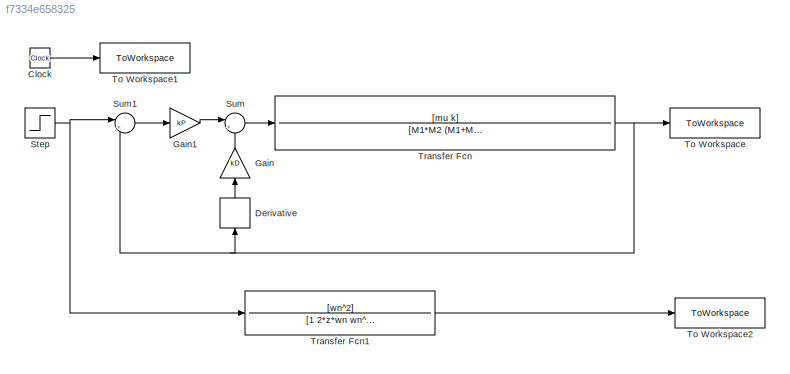
MODEL slx_f7334e658325
KIND model
CONFIG AbsTol = auto
CONFIG EnableMultiTasking = on
CONFIG FixedStep = 0.001
CONFIG MaxStep = auto
CONFIG MinStep = auto
CONFIG RelTol = 1e-3
CONFIG SampleTimeConstraint = Unconstrained
CONFIG SolverName = ode4
CONFIG StartTime = 0.0
CONFIG StopTime = 5
BLOCK [Clock] Clock
BLOCK [Derivative] Derivative
  NameLocation = left
BLOCK [Gain] Gain
  Gain = kD
  NameLocation = left
  OutDataTypeStr = Inherit: Same as input
  ParamDataTypeStr = Inherit: Same as input
  SaturateOnIntegerOverflow = on
BLOCK [Gain] Gain1
  Gain = kP
  OutDataTypeStr = Inherit: Same as input
  ParamDataTypeStr = Inherit: Same as input
  SaturateOnIntegerOverflow = on
BLOCK [Step] Step
  SampleTime = 0
  Time = 0
BLOCK [Sum] Sum
  Inputs = |+-
  NameLocation = top
  SaturateOnIntegerOverflow = on
BLOCK [Sum] Sum1
  Inputs = |+-
  NameLocation = top
  SaturateOnIntegerOverflow = on
BLOCK [ToWorkspace] To Workspace
  FixptAsFi = on
  MaxDataPoints = inf
  SampleTime = -1
  VariableName = y
BLOCK [ToWorkspace] To Workspace1
  FixptAsFi = on
  MaxDataPoints = inf
  SampleTime = -1
  VariableName = t
BLOCK [ToWorkspace] To Workspace2
  FixptAsFi = on
  MaxDataPoints = inf
  SampleTime = -1
  VariableName = yM
BLOCK [TransferFcn] Transfer Fcn
  Denominator = [M1*M2  (M1+M2)*mu  (M1+M2)*k  0  0]
  Numerator = [mu  k]
BLOCK [TransferFcn] Transfer Fcn1
  Denominator = [1 2*z*wn wn^2]
  Numerator = [wn^2]
LINE Clock:1 -> To Workspace1:1
LINE Derivative:1 -> Gain:1
LINE Gain1:1 -> Sum:1
LINE Gain:1 -> Sum:2
NET Step:1 -> Sum1:1, Transfer Fcn1:1
LINE Sum1:1 -> Gain1:1
LINE Sum:1 -> Transfer Fcn:1
LINE Transfer Fcn1:1 -> To Workspace2:1
NET Transfer Fcn:1 -> Derivative:1, Sum1:2, To Workspace:1
note: NET lines group one-source signal fan-out (src -> all destinations, sorted); 1:1 wires keep LINE
